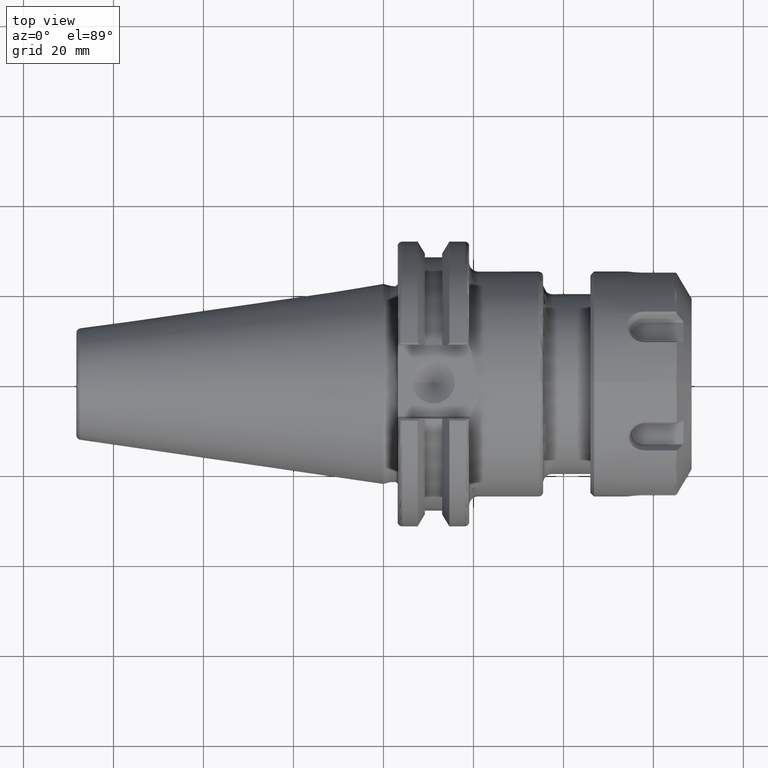
[diagram: clean part render]
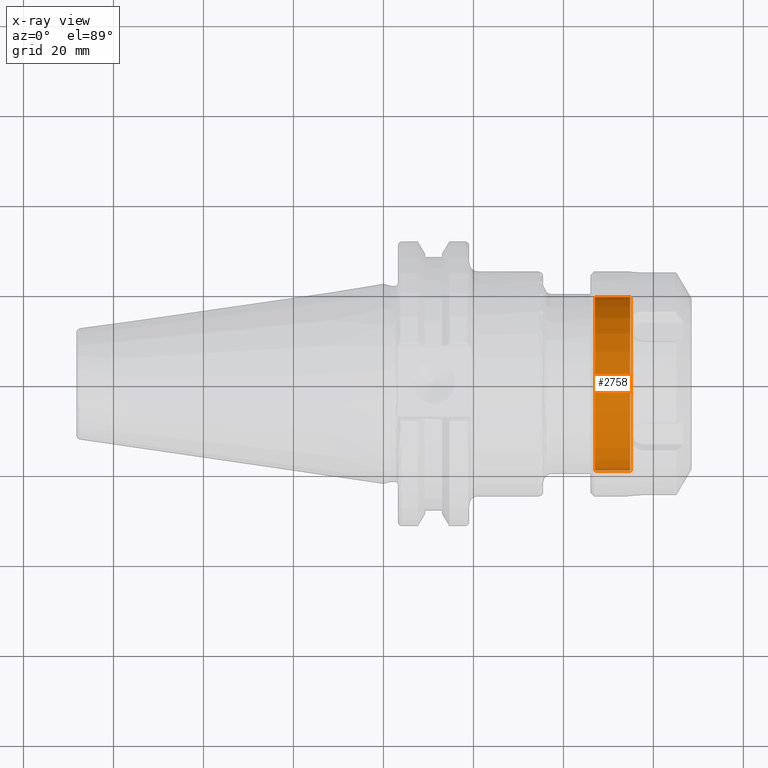
[diagram: x-ray — body ghosted, one internal face saturated and labeled with its STEP entity id]
A machine part, top view, then the same camera in x-ray: the body is ghosted and one INTERNAL B-rep face — a face not visible from any outside direction — is saturated and labeled: STEP entity #2758.
In plain terms, the highlighted cylindrical surface (bore or boss wall) has radius 19.3 mm, axis along (1, 0, 0).
Its self-contained STEP definition (entity closure, byte-faithful):
#281=CYLINDRICAL_SURFACE('',#3069,19.3);
#464=FACE_OUTER_BOUND('',#636,.T.);
#636=EDGE_LOOP('',(#2256,#2257,#2258,#2259,#2260));
#801=LINE('',#4691,#964);
#964=VECTOR('',#3595,19.3);
#1118=CIRCLE('',#3067,19.3);
#1119=CIRCLE('',#3068,19.3);
#1120=CIRCLE('',#3070,19.3);
#1308=VERTEX_POINT('',#4684);
#1309=VERTEX_POINT('',#4686);
#1310=VERTEX_POINT('',#4690);
#1640=EDGE_CURVE('',#1308,#1309,#1118,.T.);
#1641=EDGE_CURVE('',#1309,#1308,#1119,.T.);
#1642=EDGE_CURVE('',#1309,#1310,#801,.T.);
#1643=EDGE_CURVE('',#1310,#1310,#1120,.T.);
#2256=ORIENTED_EDGE('',*,*,#1640,.F.);
#2257=ORIENTED_EDGE('',*,*,#1641,.F.);
#2258=ORIENTED_EDGE('',*,*,#1642,.T.);
#2259=ORIENTED_EDGE('',*,*,#1643,.F.);
#2260=ORIENTED_EDGE('',*,*,#1642,.F.);
#2758=ADVANCED_FACE('',(#464),#281,.F.);
#3067=AXIS2_PLACEMENT_3D('',#4687,#3589,#3590);
#3068=AXIS2_PLACEMENT_3D('',#4688,#3591,#3592);
#3069=AXIS2_PLACEMENT_3D('',#4689,#3593,#3594);
#3070=AXIS2_PLACEMENT_3D('',#4692,#3596,#3597);
#3589=DIRECTION('center_axis',(1.,0.,0.));
#3590=DIRECTION('ref_axis',(0.,1.,0.));
#3591=DIRECTION('center_axis',(1.,0.,0.));
#3592=DIRECTION('ref_axis',(0.,1.,0.));
#3593=DIRECTION('center_axis',(1.,0.,0.));
#3594=DIRECTION('ref_axis',(0.,-1.,0.));
#3595=DIRECTION('',(1.,0.,0.));
#3596=DIRECTION('center_axis',(-1.,0.,0.));
#3597=DIRECTION('ref_axis',(0.,1.,0.));
#4684=CARTESIAN_POINT('',(-10.25,-19.2996618297511,0.114250852292867));
#4686=CARTESIAN_POINT('',(-10.25,19.3,2.36356832235439E-15));
#4687=CARTESIAN_POINT('Origin',(-10.25,0.,0.));
#4688=CARTESIAN_POINT('Origin',(-10.25,0.,0.));
#4689=CARTESIAN_POINT('Origin',(0.,0.,0.));
#4690=CARTESIAN_POINT('',(-2.39544826719,19.3,0.));
#4691=CARTESIAN_POINT('',(0.,19.3,2.36356832235439E-15));
#4692=CARTESIAN_POINT('Origin',(-2.39544826719,0.,0.));